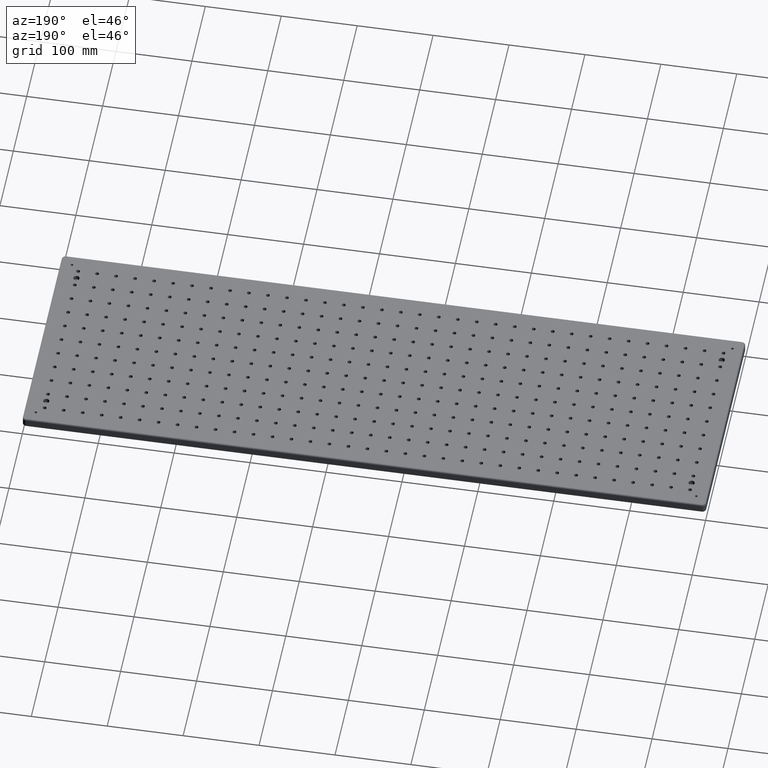
[diagram: clean part render]
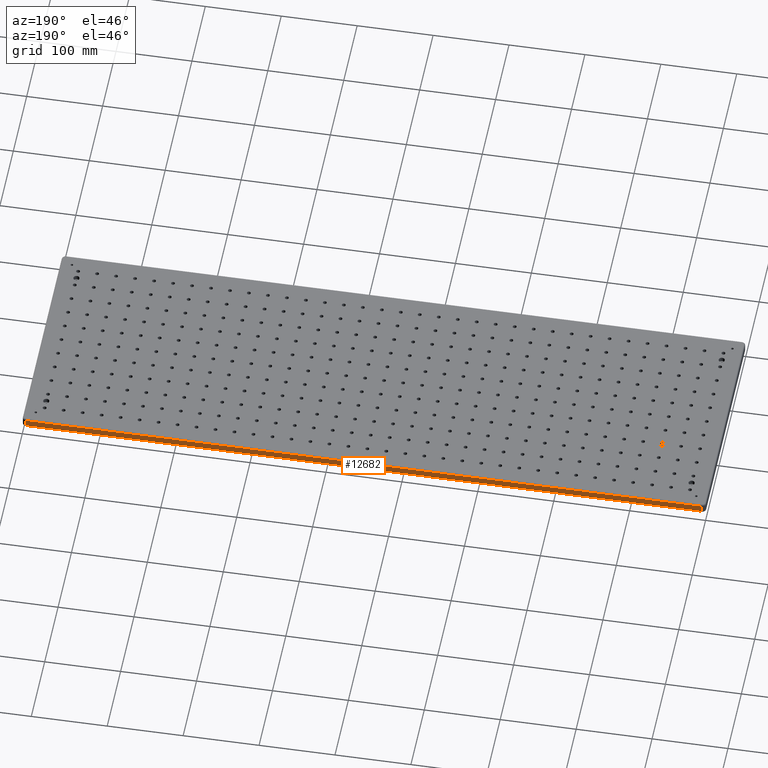
[diagram: same view with one face highlighted and labeled with its STEP entity id]
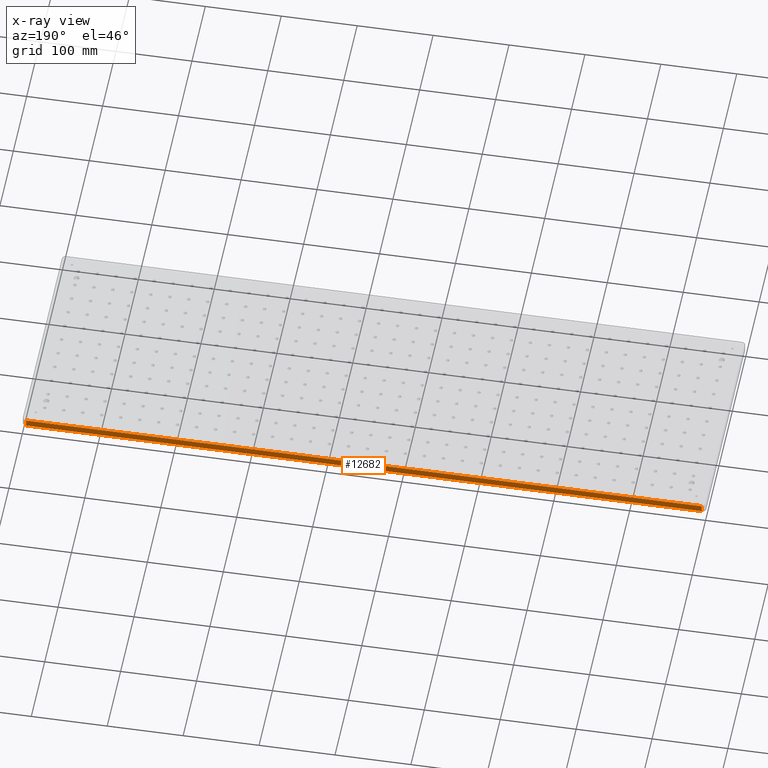
[diagram: x-ray of the same camera — body ghosted, the highlighted face saturated]
A machine part, auxiliary view. The second image highlights one B-rep face of the part: STEP entity #12682.
The next image is the same camera in x-ray: the body ghosted, the highlighted face saturated — about 0% of this face is hidden behind the body in this view.
In plain terms, the highlighted planar face has unit normal (0, 1, 0).
Its self-contained STEP definition (entity closure, byte-faithful):
#697 = DIRECTION ( 'NONE',  ( -1.000000000000000000, 0.0000000000000000000, 0.0000000000000000000 ) ) ;
#1446 = LINE ( 'NONE', #4967, #3648 ) ;
#3648 = VECTOR ( 'NONE', #28365, 1000.000000000000000 ) ;
#3934 = EDGE_CURVE ( 'NONE', #26657, #20342, #1446, .T. ) ;
#3964 = AXIS2_PLACEMENT_3D ( 'NONE', #25111, #29786, #20604 ) ;
#4476 = CARTESIAN_POINT ( 'NONE',  ( 895.0000000000000000, 300.0000000000000000, -2.000000000000000000 ) ) ;
#4711 = VECTOR ( 'NONE', #25620, 1000.000000000000000 ) ;
#4831 = EDGE_CURVE ( 'NONE', #30110, #26657, #14845, .T. ) ;
#4967 = CARTESIAN_POINT ( 'NONE',  ( 895.0000000000000000, 300.0000000000000000, -13.00000000000000000 ) ) ;
#6107 = CARTESIAN_POINT ( 'NONE',  ( 895.0000000000000000, 300.0000000000000000, -2.000000000000000000 ) ) ;
#7565 = CARTESIAN_POINT ( 'NONE',  ( 0.0000000000000000000, 300.0000000000000000, -11.00000000000000000 ) ) ;
#8820 = EDGE_CURVE ( 'NONE', #23510, #30110, #29678, .T. ) ;
#12682 = ADVANCED_FACE ( 'NONE', ( #17051 ), #20502, .T. ) ;
#14004 = CARTESIAN_POINT ( 'NONE',  ( 4.999999999999998200, 300.0000000000000000, -13.00000000000000000 ) ) ;
#14287 = ORIENTED_EDGE ( 'NONE', *, *, #3934, .T. ) ;
#14845 = LINE ( 'NONE', #4476, #4711 ) ;
#15603 = VECTOR ( 'NONE', #697, 1000.000000000000000 ) ;
#17051 = FACE_OUTER_BOUND ( 'NONE', #24330, .T. ) ;
#17368 = ORIENTED_EDGE ( 'NONE', *, *, #4831, .T. ) ;
#19171 = CARTESIAN_POINT ( 'NONE',  ( 4.999999999999998200, 300.0000000000000000, -11.00000000000000000 ) ) ;
#20342 = VERTEX_POINT ( 'NONE', #24624 ) ;
#20502 = PLANE ( 'NONE',  #3964 ) ;
#20604 = DIRECTION ( 'NONE',  ( 0.0000000000000000000, -0.0000000000000000000, 1.000000000000000000 ) ) ;
#21796 = LINE ( 'NONE', #7565, #15603 ) ;
#23147 = ORIENTED_EDGE ( 'NONE', *, *, #27613, .T. ) ;
#23510 = VERTEX_POINT ( 'NONE', #19171 ) ;
#24330 = EDGE_LOOP ( 'NONE', ( #14287, #23147, #29922, #17368 ) ) ;
#24624 = CARTESIAN_POINT ( 'NONE',  ( 895.0000000000000000, 300.0000000000000000, -11.00000000000000000 ) ) ;
#25111 = CARTESIAN_POINT ( 'NONE',  ( 0.0000000000000000000, 300.0000000000000000, -13.00000000000000000 ) ) ;
#25341 = VECTOR ( 'NONE', #28097, 1000.000000000000000 ) ;
#25620 = DIRECTION ( 'NONE',  ( 1.000000000000000000, -0.0000000000000000000, 0.0000000000000000000 ) ) ;
#26657 = VERTEX_POINT ( 'NONE', #6107 ) ;
#27613 = EDGE_CURVE ( 'NONE', #20342, #23510, #21796, .T. ) ;
#28097 = DIRECTION ( 'NONE',  ( 0.0000000000000000000, -0.0000000000000000000, 1.000000000000000000 ) ) ;
#28365 = DIRECTION ( 'NONE',  ( -0.0000000000000000000, 0.0000000000000000000, -1.000000000000000000 ) ) ;
#29293 = CARTESIAN_POINT ( 'NONE',  ( 4.999999999999998200, 300.0000000000000000, -2.000000000000000000 ) ) ;
#29678 = LINE ( 'NONE', #14004, #25341 ) ;
#29786 = DIRECTION ( 'NONE',  ( 0.0000000000000000000, 1.000000000000000000, 0.0000000000000000000 ) ) ;
#29922 = ORIENTED_EDGE ( 'NONE', *, *, #8820, .T. ) ;
#30110 = VERTEX_POINT ( 'NONE', #29293 ) ;